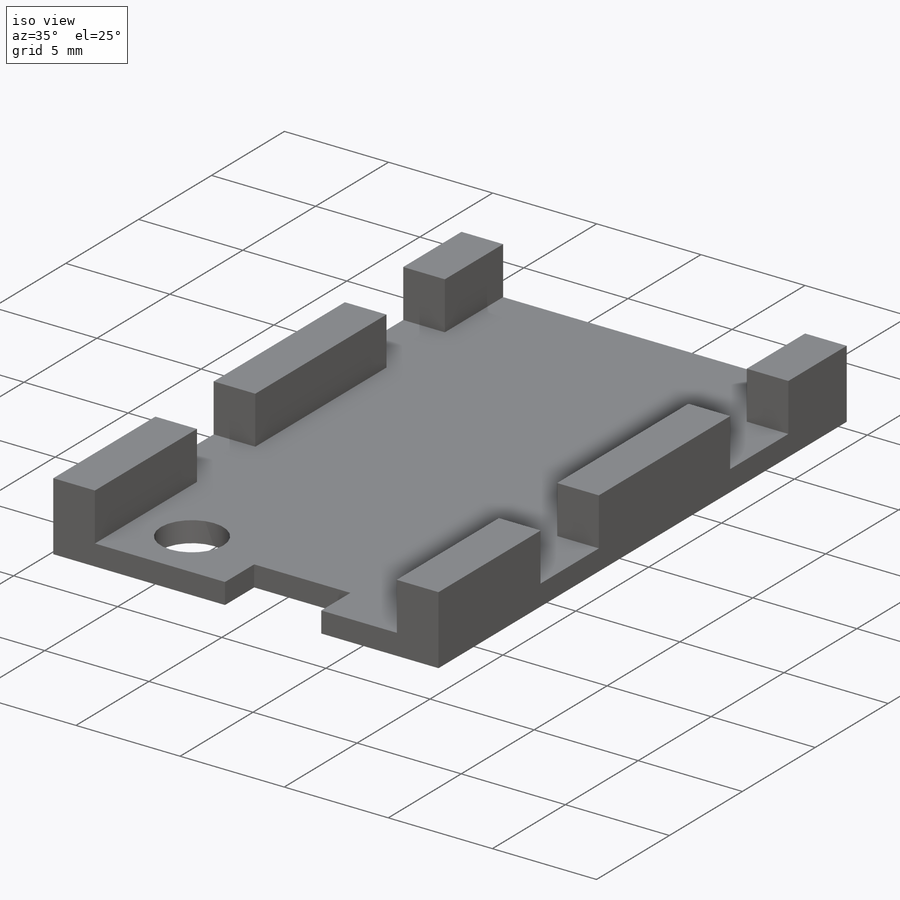
[diagram: iso view]
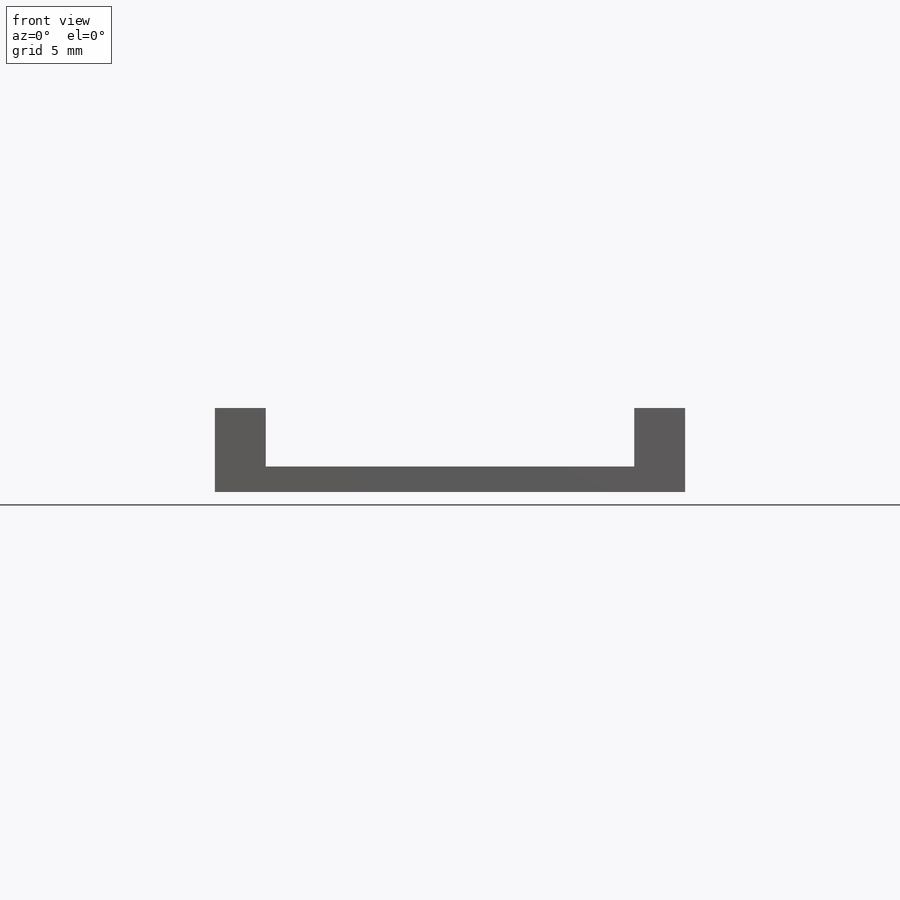
[diagram: front view]
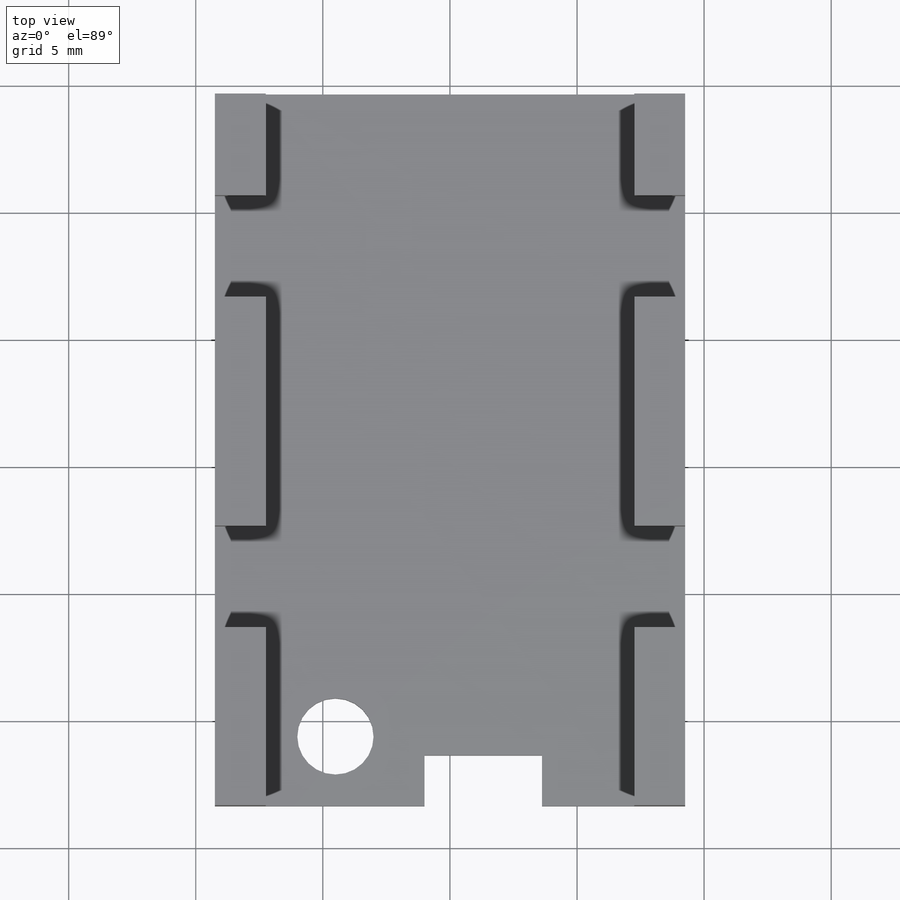
[diagram: top view]
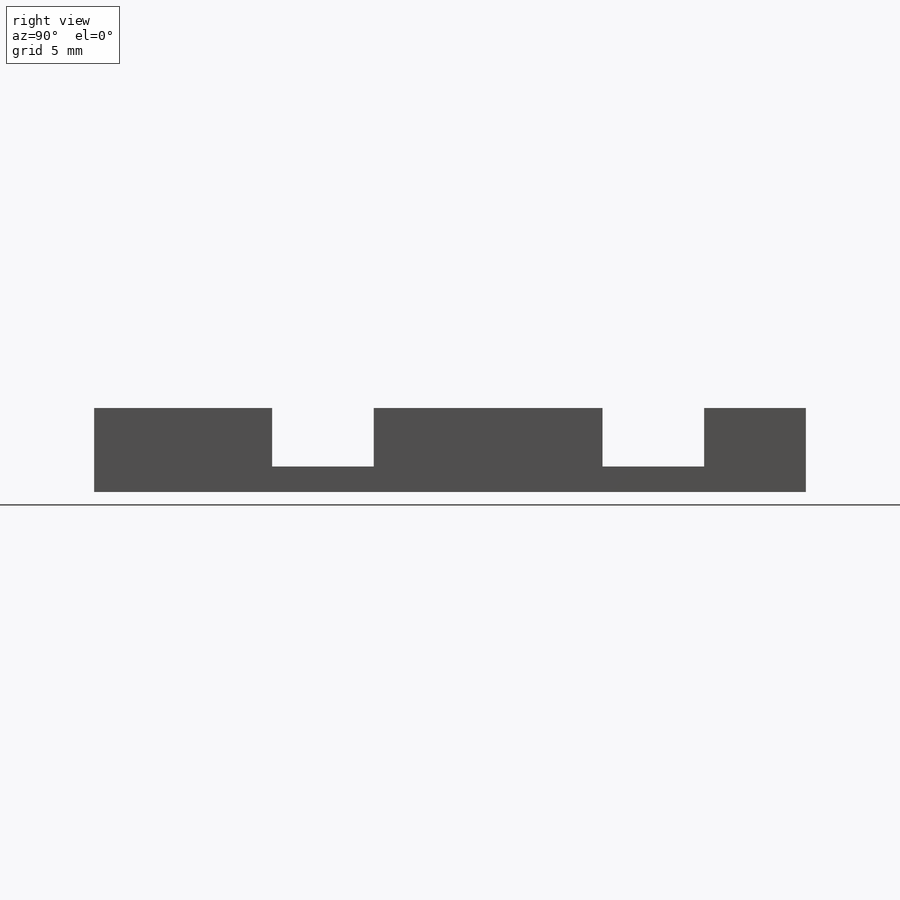
[diagram: right view]
SOLIDWORKS PART (.sldprt)
format: sldprt  version: not decoded by parser v0  size: 227,840 bytes
history: native  units: mm
features: sketch x5, cut_extrude x3, extrude x2, material x1 (+13 scaffold rows collapsed)
feature tree (24):
  scaffold x13  (default folders/planes/origin — collapsed)
  material  "Material <not specified>"
  sketch  "main board outline"  dims[D1=28.0mm D2=14.5mm D3=2.0mm D4=2.0mm]
  extrude  "side1"  Depth=1mm
  sketch  "Sketch2"  dims[D1=2.0mm D2=2.0mm]
  extrude  "walls"  Depth=2.3mm
  sketch  "Sketch3"  dims[c1.D1=~1.658507mm c1.D3=1.25mm c2.D1=2.7432mm c2.D2=4.743mm]
  cut_extrude  "screw hole"  Depth=2.3mm
  sketch  "Sketch4"  dims[c1.D1=8.2484mm c1.D2=12.8712mm c1.D3=2.0mm c2.D1=4.6228mm c2.D2=8.248mm]
  cut_extrude  "spi hole"  Depth=2.3mm
  sketch  "Sketch5"  dims[D1=4.0mm D2=4.0mm D3=4.0mm D4=4.0mm D5=4.0mm D6=4.0mm D7=7.0mm D8=7.0mm]
  cut_extrude  "Cut-Extrude3"  Depth=2.3mm
decode coverage: 10 of 10 modeling features carry decoded parameters
note: ~ marks probable driven/reference dimensions
note: suppression state not decoded; provenance and decode notes live in map.json
